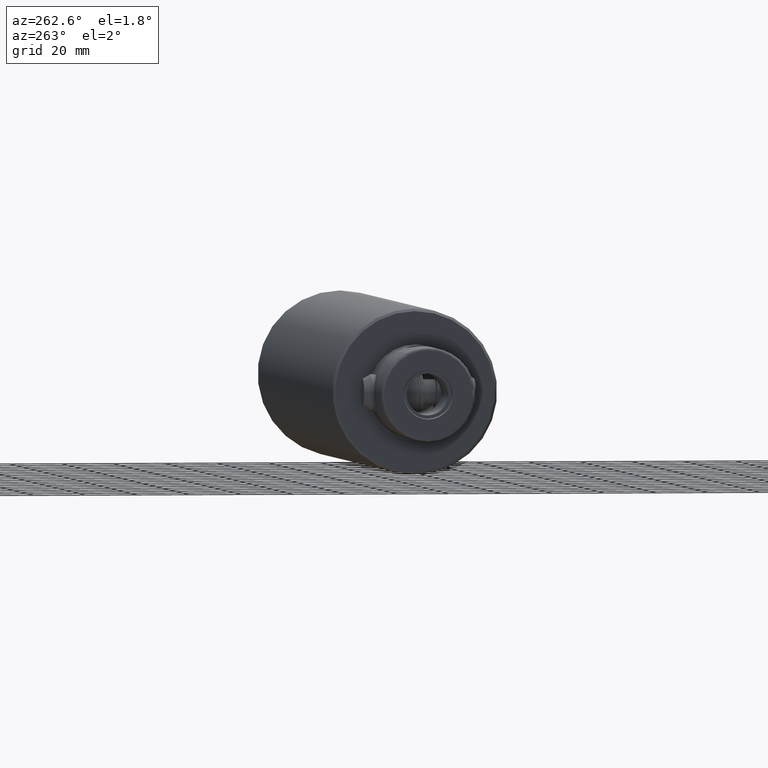
[diagram: clean part render]
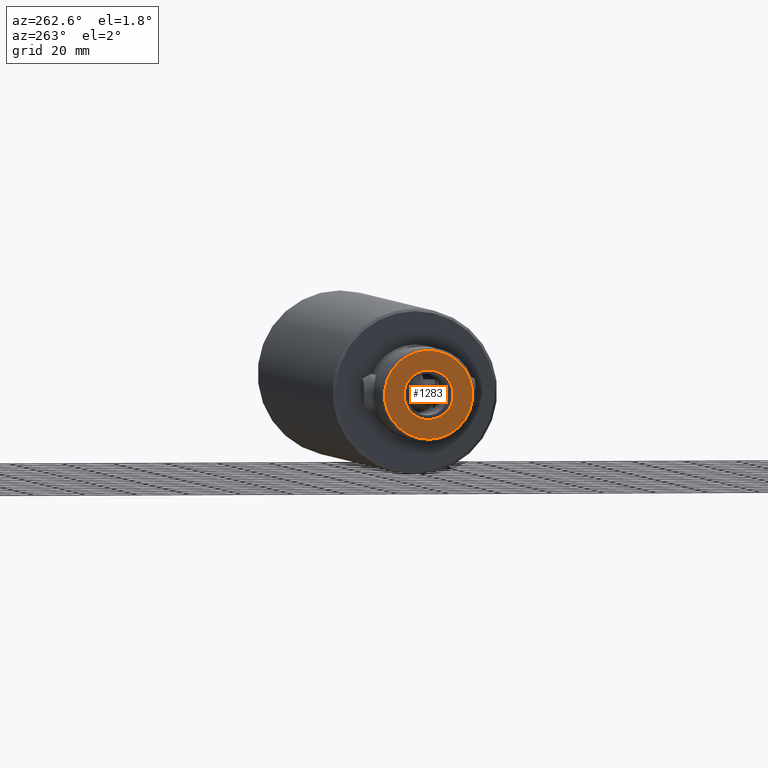
[diagram: same view with one face highlighted and labeled with its STEP entity id]
A machine part, auxiliary view. The second image highlights one B-rep face of the part: STEP entity #1283.
In plain terms, the highlighted planar face has unit normal (1, 0, 0).
Its self-contained STEP definition (entity closure, byte-faithful):
#101 = ORIENTED_EDGE ( 'NONE', *, *, #2122, .F. ) ;
#224 = DIRECTION ( 'NONE',  ( 1.000000000000000000, 0.0000000000000000000, 0.0000000000000000000 ) ) ;
#225 = CARTESIAN_POINT ( 'NONE',  ( 5.362924731036603600E-016, 16.99999999999999300, 0.0000000000000000000 ) ) ;
#227 = PLANE ( 'NONE',  #2785 ) ;
#229 = DIRECTION ( 'NONE',  ( 0.0000000000000000000, 0.0000000000000000000, -1.000000000000000000 ) ) ;
#751 = CARTESIAN_POINT ( 'NONE',  ( 1.506265815201522500E-015, 0.0000000000000000000, 0.0000000000000000000 ) ) ;
#752 = DIRECTION ( 'NONE',  ( -1.000000000000000000, -0.0000000000000000000, -0.0000000000000000000 ) ) ;
#753 = DIRECTION ( 'NONE',  ( 0.0000000000000000000, 0.0000000000000000000, 1.000000000000000000 ) ) ;
#774 = CARTESIAN_POINT ( 'NONE',  ( -4.336808689942017700E-016, 0.0000000000000000000, 0.0000000000000000000 ) ) ;
#775 = DIRECTION ( 'NONE',  ( -1.000000000000000000, -0.0000000000000000000, -0.0000000000000000000 ) ) ;
#776 = DIRECTION ( 'NONE',  ( 0.0000000000000000000, 0.0000000000000000000, 1.000000000000000000 ) ) ;
#1110 = CARTESIAN_POINT ( 'NONE',  ( -4.336808689942017700E-016, 0.0000000000000000000, 0.0000000000000000000 ) ) ;
#1111 = DIRECTION ( 'NONE',  ( -1.000000000000000000, -0.0000000000000000000, -0.0000000000000000000 ) ) ;
#1112 = DIRECTION ( 'NONE',  ( 0.0000000000000000000, 0.0000000000000000000, 1.000000000000000000 ) ) ;
#1210 = CARTESIAN_POINT ( 'NONE',  ( 1.506265815201522500E-015, 0.0000000000000000000, 0.0000000000000000000 ) ) ;
#1211 = DIRECTION ( 'NONE',  ( -1.000000000000000000, -0.0000000000000000000, -0.0000000000000000000 ) ) ;
#1212 = DIRECTION ( 'NONE',  ( 0.0000000000000000000, 0.0000000000000000000, 1.000000000000000000 ) ) ;
#1283 = ADVANCED_FACE ( 'NONE', ( #2997, #2996 ), #227, .F. ) ;
#1485 = CARTESIAN_POINT ( 'NONE',  ( 1.506265815201522500E-015, 1.163414459189985500E-015, -9.500000000000000000 ) ) ;
#1489 = CARTESIAN_POINT ( 'NONE',  ( 1.506265815201522500E-015, 0.0000000000000000000, 9.500000000000000000 ) ) ;
#1496 = CARTESIAN_POINT ( 'NONE',  ( -4.336808689942017700E-016, 0.0000000000000000000, 16.99999999999999300 ) ) ;
#1497 = CARTESIAN_POINT ( 'NONE',  ( -4.336808689942017700E-016, 2.142201641675594700E-015, -16.99999999999999300 ) ) ;
#1821 = ORIENTED_EDGE ( 'NONE', *, *, #2035, .F. ) ;
#1822 = ORIENTED_EDGE ( 'NONE', *, *, #2116, .T. ) ;
#1824 = ORIENTED_EDGE ( 'NONE', *, *, #2045, .T. ) ;
#2035 = EDGE_CURVE ( 'NONE', #2625, #2629, #3149, .T. ) ;
#2045 = EDGE_CURVE ( 'NONE', #2636, #2637, #3167, .T. ) ;
#2116 = EDGE_CURVE ( 'NONE', #2637, #2636, #2294, .T. ) ;
#2122 = EDGE_CURVE ( 'NONE', #2629, #2625, #2299, .T. ) ;
#2294 = CIRCLE ( 'NONE', #2896, 16.99999999999999300 ) ;
#2299 = CIRCLE ( 'NONE', #2899, 9.500000000000000000 ) ;
#2625 = VERTEX_POINT ( 'NONE', #1485 ) ;
#2629 = VERTEX_POINT ( 'NONE', #1489 ) ;
#2636 = VERTEX_POINT ( 'NONE', #1496 ) ;
#2637 = VERTEX_POINT ( 'NONE', #1497 ) ;
#2672 = EDGE_LOOP ( 'NONE', ( #1824, #1822 ) ) ;
#2700 = EDGE_LOOP ( 'NONE', ( #101, #1821 ) ) ;
#2785 = AXIS2_PLACEMENT_3D ( 'NONE', #225, #224, #229 ) ;
#2858 = AXIS2_PLACEMENT_3D ( 'NONE', #751, #752, #753 ) ;
#2863 = AXIS2_PLACEMENT_3D ( 'NONE', #774, #775, #776 ) ;
#2896 = AXIS2_PLACEMENT_3D ( 'NONE', #1110, #1111, #1112 ) ;
#2899 = AXIS2_PLACEMENT_3D ( 'NONE', #1210, #1211, #1212 ) ;
#2996 = FACE_OUTER_BOUND ( 'NONE', #2672, .T. ) ;
#2997 = FACE_BOUND ( 'NONE', #2700, .T. ) ;
#3149 = CIRCLE ( 'NONE', #2858, 9.500000000000000000 ) ;
#3167 = CIRCLE ( 'NONE', #2863, 16.99999999999999300 ) ;